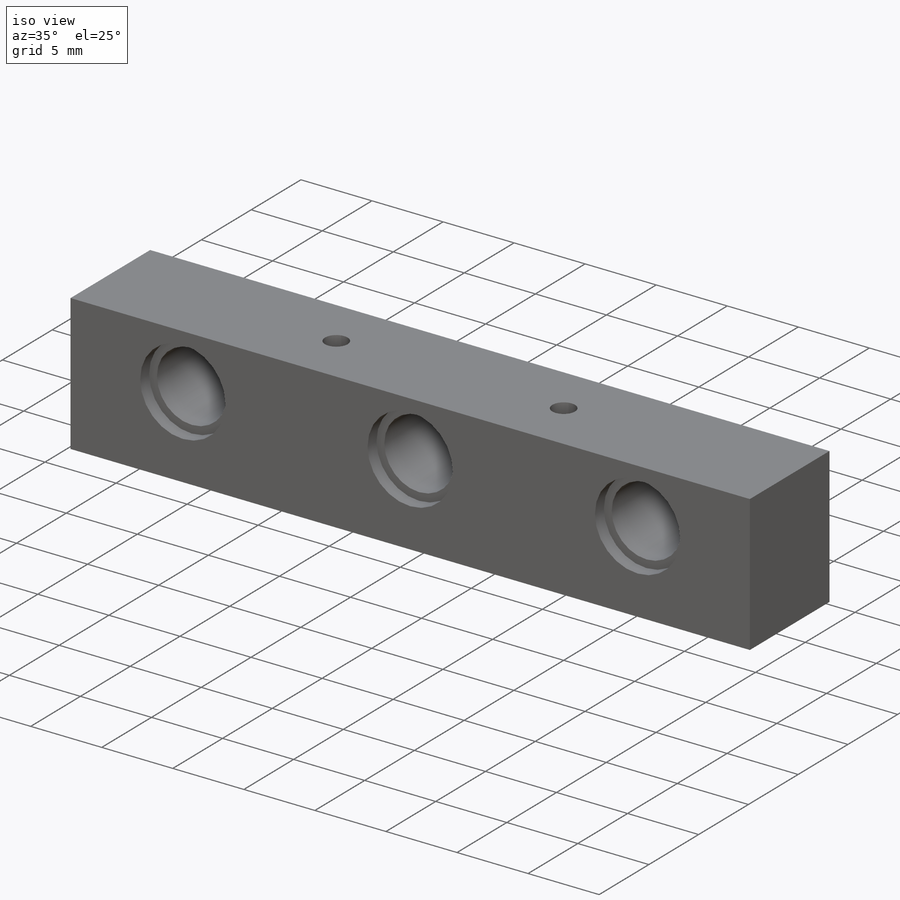
[diagram: iso view]
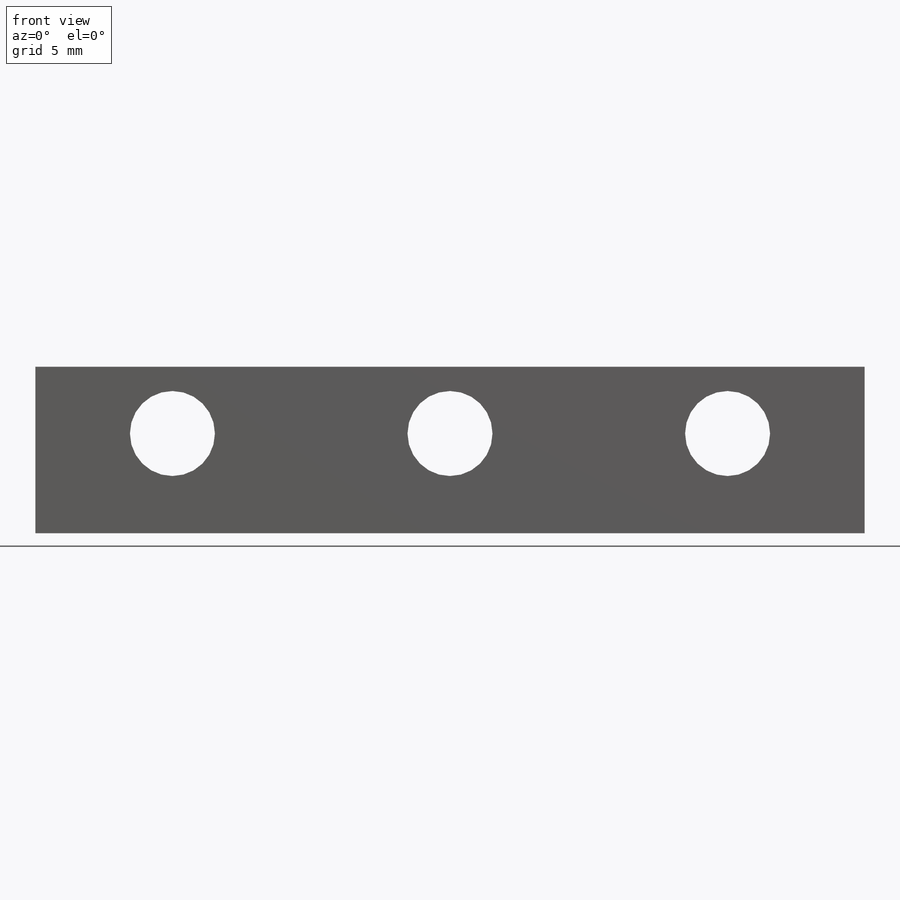
[diagram: front view]
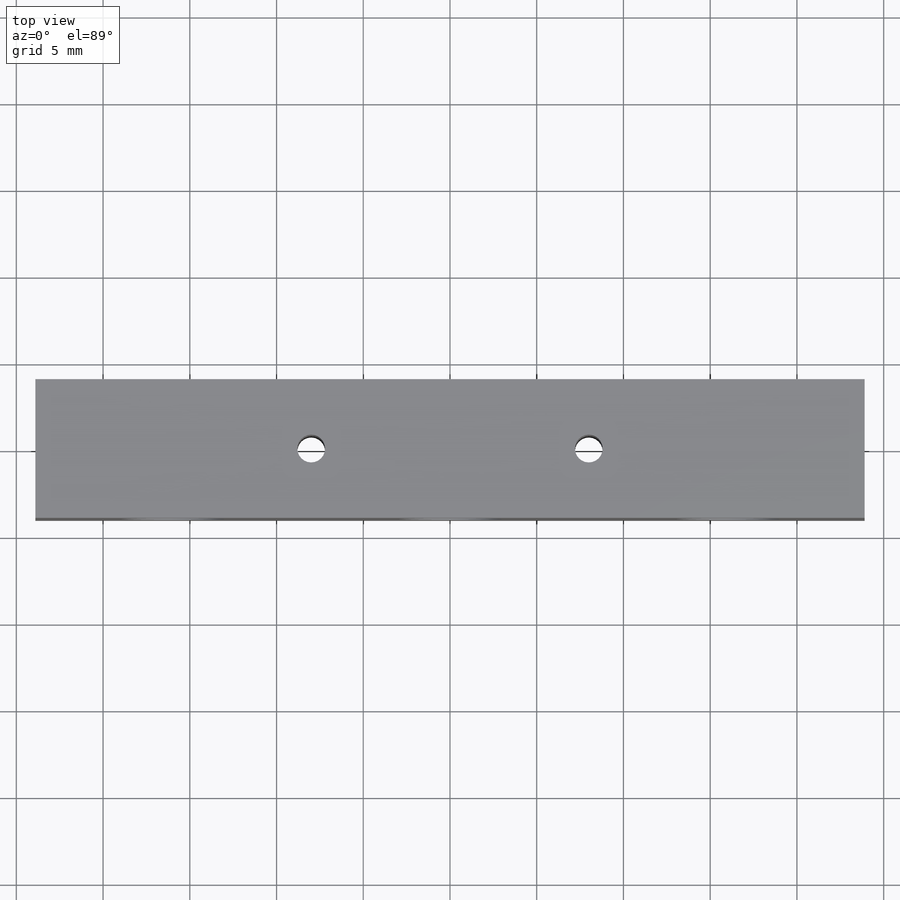
[diagram: top view]
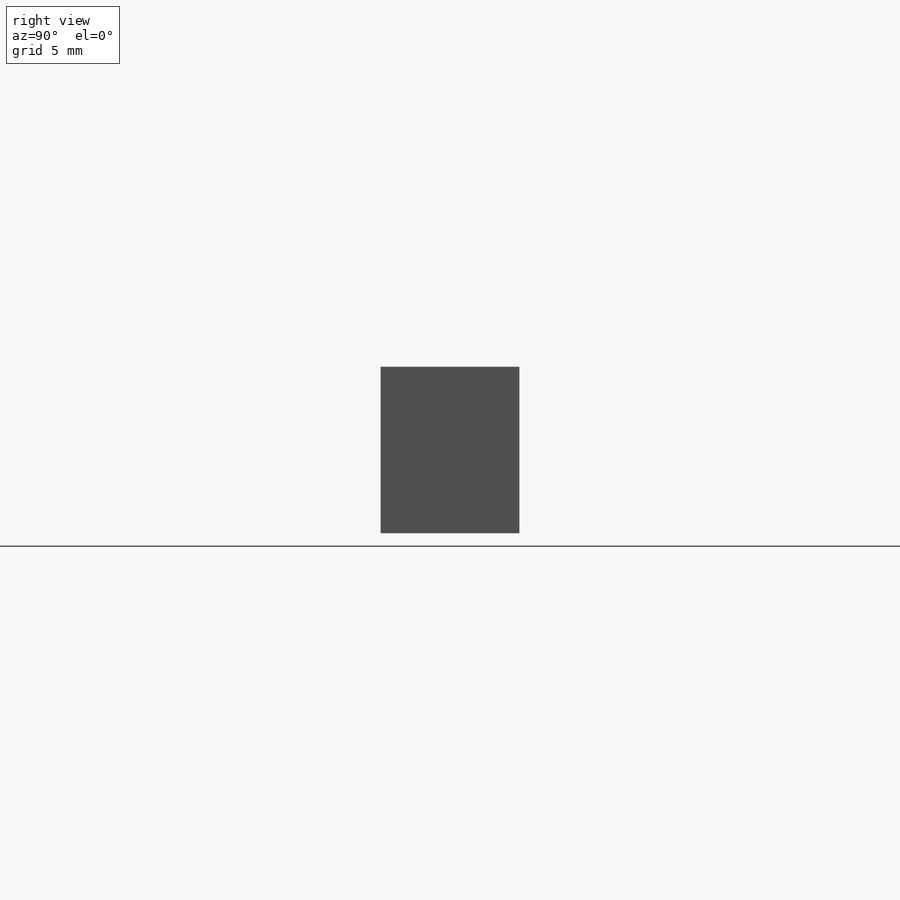
[diagram: right view]
SOLIDWORKS PART (.sldprt)
format: sldprt  version: not decoded by parser v0  size: 248,320 bytes
history: native  units: mm
features: sketch x6, plane x3, cut_extrude x3, thread x2, material x1, extrude x1, mirror x1, hole x1 (+9 scaffold rows collapsed)
feature tree (27):
  scaffold x9  (default folders/planes/origin — collapsed)
  material  "3.1325 (EN-AW 2017A)"
  plane  "Ebene vorne"
  plane  "Ebene oben"
  plane  "Ebene rechts"
  sketch  "Skizze1"  dims[D1=9.6mm D2=47.8mm]
  extrude  "Aufsatz-Linear austragen1"  Depth=8mm
  sketch  "Skizze2"  dims[D2=4.9mm D4=6.0mm D1=16.0mm D3=5.75mm]
  cut_extrude  "Schnitt-Linear austragen1"  [1 undecoded]
  cut_extrude  "Schnitt-Linear austragen2"  [1 undecoded]
  sketch  "Skizze2<3>"  dims[D1=0.9mm]
  mirror  "Spiegeln1"
  hole  "M2 Gewindebohrung1"  [1 undecoded]
  sketch  "Skizze4"  dims[D1=8.0mm]
  thread  "Bohrungsgewinde1"  Diameter=2mm  [1 undecoded]
  thread  "Bohrungsgewinde2"  Diameter=2mm  [1 undecoded]
  sketch  "Skizze3"  dims[hole-wizard template sketch: 60 standard entries collapsed; hole parameters kept: c18.Bohrungstiefe=9.6mm]
  sketch  "Skizze5"  dims[c1.D1=4.9mm c1.D2=20.0mm c1.D3=20.0mm c2.D2=8.0mm]
  cut_extrude  "Schnitt-Linear austragen3"  Depth=2mm
decode coverage: 10 of 14 modeling features carry decoded parameters
note: ~ marks probable driven/reference dimensions
note: 5 parameter values undecoded
summary: no parameter record found for 3 features
note: suppression state not decoded; provenance and decode notes live in map.json
